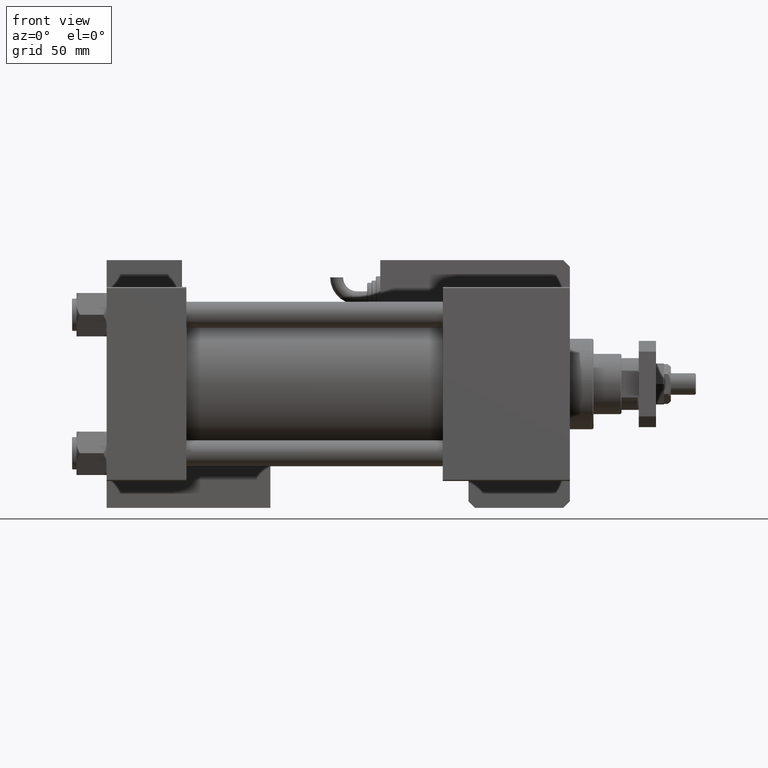
[diagram: clean part render]
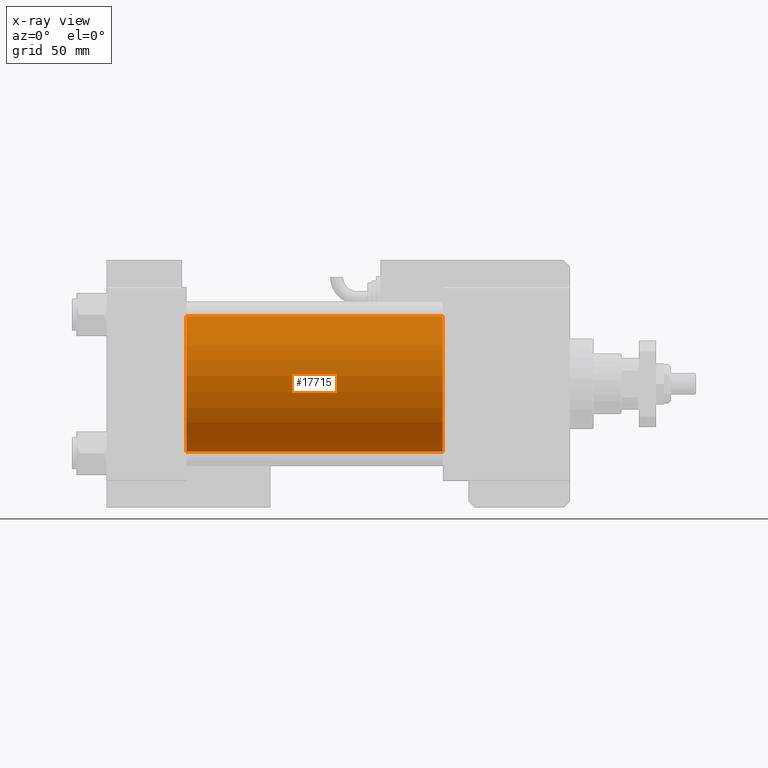
[diagram: x-ray — body ghosted, one internal face saturated and labeled with its STEP entity id]
A machine part, front view, then the same camera in x-ray: the body is ghosted and one INTERNAL B-rep face — a face not visible from any outside direction — is saturated and labeled: STEP entity #17715.
In plain terms, the highlighted cylindrical surface (partial cylindrical patch) has radius 31.5 mm, axis along (-1, -0, -0).
Its self-contained STEP definition (entity closure, byte-faithful):
#2583 = CARTESIAN_POINT ( 'NONE',  ( 156.0000000000000000, -2.602085213965210642E-15, 0.000000000000000000 ) ) ;
#3526 = VECTOR ( 'NONE', #39723, 1000.000000000000000 ) ;
#5439 = ORIENTED_EDGE ( 'NONE', *, *, #30003, .T. ) ;
#5459 = LINE ( 'NONE', #26398, #18038 ) ;
#6976 = DIRECTION ( 'NONE',  ( 0.000000000000000000, 0.000000000000000000, -1.000000000000000000 ) ) ;
#7537 = DIRECTION ( 'NONE',  ( 1.000000000000000000, 0.000000000000000000, 0.000000000000000000 ) ) ;
#7592 = CARTESIAN_POINT ( 'NONE',  ( 37.00000000000000000, 1.255552203348951850E-15, -31.50000000000000000 ) ) ;
#9471 = CARTESIAN_POINT ( 'NONE',  ( 156.0000000000000000, 1.255552203348951850E-15, -31.50000000000000000 ) ) ;
#11046 = VERTEX_POINT ( 'NONE', #7592 ) ;
#11411 = EDGE_LOOP ( 'NONE', ( #5439, #40067, #48728, #50007 ) ) ;
#12707 = DIRECTION ( 'NONE',  ( 0.000000000000000000, 0.000000000000000000, -1.000000000000000000 ) ) ;
#13429 = LINE ( 'NONE', #9471, #3526 ) ;
#13434 = AXIS2_PLACEMENT_3D ( 'NONE', #25060, #7537, #6976 ) ;
#15879 = CYLINDRICAL_SURFACE ( 'NONE', #39279, 31.50000000000000000 ) ;
#17715 = ADVANCED_FACE ( 'NONE', ( #29165 ), #15879, .F. ) ;
#18038 = VECTOR ( 'NONE', #18466, 1000.000000000000000 ) ;
#18466 = DIRECTION ( 'NONE',  ( -1.000000000000000000, -0.000000000000000000, -0.000000000000000000 ) ) ;
#18759 = CIRCLE ( 'NONE', #50371, 31.50000000000000000 ) ;
#19547 = DIRECTION ( 'NONE',  ( 0.000000000000000000, 0.000000000000000000, 1.000000000000000000 ) ) ;
#21591 = CIRCLE ( 'NONE', #13434, 31.50000000000000000 ) ;
#24003 = CARTESIAN_POINT ( 'NONE',  ( 156.0000000000000000, 1.255552203348951850E-15, -31.50000000000000000 ) ) ;
#25060 = CARTESIAN_POINT ( 'NONE',  ( 156.0000000000000000, -2.602085213965210642E-15, 0.000000000000000000 ) ) ;
#26398 = CARTESIAN_POINT ( 'NONE',  ( 156.0000000000000000, -2.602085213965210642E-15, 31.50000000000000000 ) ) ;
#27195 = VERTEX_POINT ( 'NONE', #45888 ) ;
#27606 = EDGE_CURVE ( 'NONE', #37527, #11046, #18759, .T. ) ;
#29165 = FACE_OUTER_BOUND ( 'NONE', #11411, .T. ) ;
#30003 = EDGE_CURVE ( 'NONE', #27195, #46395, #21591, .T. ) ;
#31494 = CARTESIAN_POINT ( 'NONE',  ( 37.00000000000000000, -2.602085213965210642E-15, 31.50000000000000000 ) ) ;
#32994 = EDGE_CURVE ( 'NONE', #27195, #37527, #5459, .T. ) ;
#37527 = VERTEX_POINT ( 'NONE', #31494 ) ;
#38724 = CARTESIAN_POINT ( 'NONE',  ( 37.00000000000000000, -2.602085213965210642E-15, 0.000000000000000000 ) ) ;
#39279 = AXIS2_PLACEMENT_3D ( 'NONE', #2583, #45579, #19547 ) ;
#39723 = DIRECTION ( 'NONE',  ( -1.000000000000000000, -0.000000000000000000, -0.000000000000000000 ) ) ;
#40067 = ORIENTED_EDGE ( 'NONE', *, *, #45571, .T. ) ;
#45571 = EDGE_CURVE ( 'NONE', #46395, #11046, #13429, .T. ) ;
#45579 = DIRECTION ( 'NONE',  ( -1.000000000000000000, -0.000000000000000000, -0.000000000000000000 ) ) ;
#45888 = CARTESIAN_POINT ( 'NONE',  ( 156.0000000000000000, -2.602085213965210642E-15, 31.50000000000000000 ) ) ;
#46395 = VERTEX_POINT ( 'NONE', #24003 ) ;
#47775 = DIRECTION ( 'NONE',  ( 1.000000000000000000, 0.000000000000000000, 0.000000000000000000 ) ) ;
#48728 = ORIENTED_EDGE ( 'NONE', *, *, #27606, .F. ) ;
#50007 = ORIENTED_EDGE ( 'NONE', *, *, #32994, .F. ) ;
#50371 = AXIS2_PLACEMENT_3D ( 'NONE', #38724, #47775, #12707 ) ;